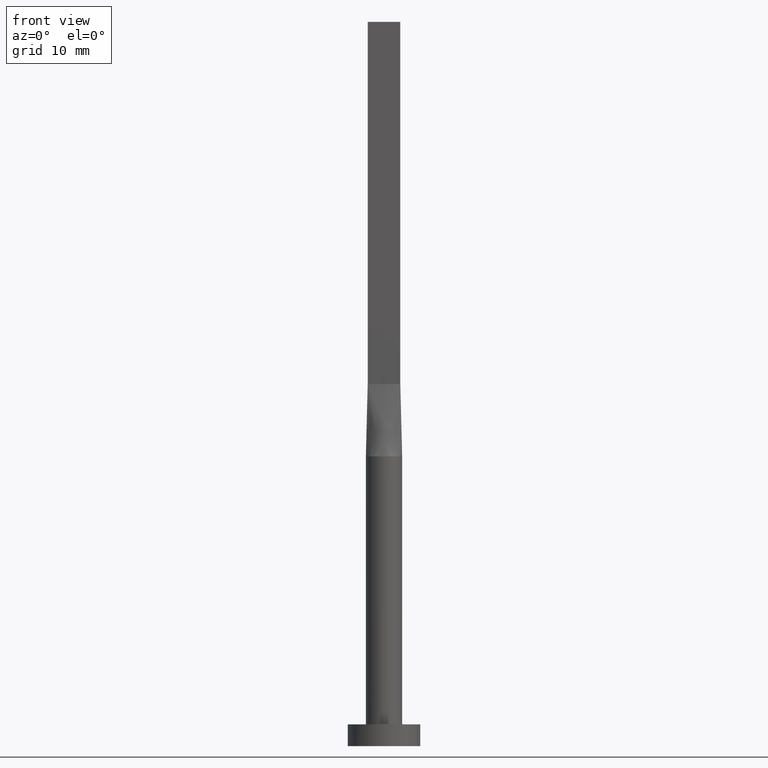
[diagram: clean part render]
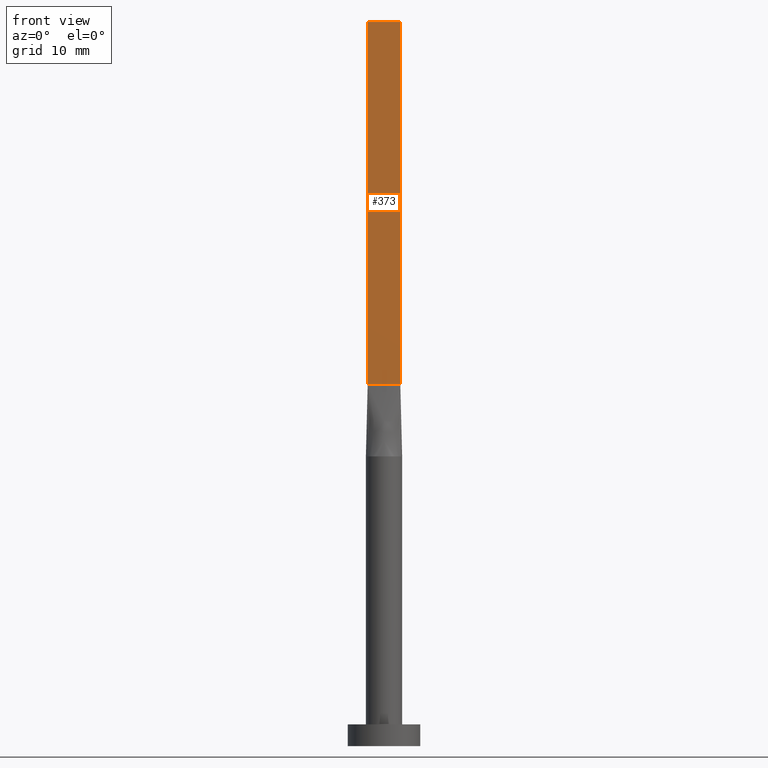
[diagram: same view with one face highlighted and labeled with its STEP entity id]
A machine part, front view. The second image highlights one B-rep face of the part: STEP entity #373.
In plain terms, the highlighted planar face has unit normal (0, 1, -0).
Its self-contained STEP definition (entity closure, byte-faithful):
#3 = LINE ( 'NONE', #243, #179 ) ;
#44 = VECTOR ( 'NONE', #85, 1000.000000000000000 ) ;
#53 = LINE ( 'NONE', #528, #567 ) ;
#62 = ORIENTED_EDGE ( 'NONE', *, *, #172, .T. ) ;
#67 = ORIENTED_EDGE ( 'NONE', *, *, #529, .F. ) ;
#70 = VERTEX_POINT ( 'NONE', #119 ) ;
#79 = CARTESIAN_POINT ( 'NONE',  ( 2.250000000000000000, -0.7499999999999997780, 50.00000000000000000 ) ) ;
#85 = DIRECTION ( 'NONE',  ( -0.000000000000000000, -0.000000000000000000, -1.000000000000000000 ) ) ;
#104 = FACE_OUTER_BOUND ( 'NONE', #467, .T. ) ;
#108 = DIRECTION ( 'NONE',  ( -1.000000000000000000, 4.818676322157798238E-17, 0.000000000000000000 ) ) ;
#116 = VERTEX_POINT ( 'NONE', #79 ) ;
#119 = CARTESIAN_POINT ( 'NONE',  ( -2.250000000000000000, -0.7499999999999995559, 100.0000000000000000 ) ) ;
#140 = VERTEX_POINT ( 'NONE', #226 ) ;
#172 = EDGE_CURVE ( 'NONE', #448, #116, #581, .T. ) ;
#179 = VECTOR ( 'NONE', #506, 1000.000000000000000 ) ;
#189 = CARTESIAN_POINT ( 'NONE',  ( 2.250000000000000000, -0.7499999999999997780, 100.0000000000000000 ) ) ;
#224 = CARTESIAN_POINT ( 'NONE',  ( -2.250000000000000000, -0.7499999999999995559, 50.00000000000000000 ) ) ;
#226 = CARTESIAN_POINT ( 'NONE',  ( 2.250000000000000000, -0.7499999999999997780, 100.0000000000000000 ) ) ;
#243 = CARTESIAN_POINT ( 'NONE',  ( -2.250000000000000000, -0.7499999999999995559, 100.0000000000000000 ) ) ;
#284 = DIRECTION ( 'NONE',  ( 4.818676322157798238E-17, 1.000000000000000000, -0.000000000000000000 ) ) ;
#305 = VECTOR ( 'NONE', #329, 1000.000000000000000 ) ;
#309 = EDGE_CURVE ( 'NONE', #70, #448, #3, .T. ) ;
#329 = DIRECTION ( 'NONE',  ( 1.000000000000000000, -4.818676322157797621E-17, 0.000000000000000000 ) ) ;
#333 = ORIENTED_EDGE ( 'NONE', *, *, #309, .T. ) ;
#338 = CARTESIAN_POINT ( 'NONE',  ( -2.250000000000000000, -0.7499999999999995559, 50.00000000000000000 ) ) ;
#373 = ADVANCED_FACE ( 'NONE', ( #104 ), #416, .F. ) ;
#381 = AXIS2_PLACEMENT_3D ( 'NONE', #454, #284, #108 ) ;
#416 = PLANE ( 'NONE',  #381 ) ;
#448 = VERTEX_POINT ( 'NONE', #338 ) ;
#454 = CARTESIAN_POINT ( 'NONE',  ( -2.250000000000000000, -0.7499999999999995559, 100.0000000000000000 ) ) ;
#467 = EDGE_LOOP ( 'NONE', ( #62, #569, #67, #333 ) ) ;
#484 = LINE ( 'NONE', #189, #44 ) ;
#501 = DIRECTION ( 'NONE',  ( 1.000000000000000000, -4.818676322157797621E-17, 0.000000000000000000 ) ) ;
#506 = DIRECTION ( 'NONE',  ( -0.000000000000000000, -0.000000000000000000, -1.000000000000000000 ) ) ;
#528 = CARTESIAN_POINT ( 'NONE',  ( -2.250000000000000000, -0.7499999999999995559, 100.0000000000000000 ) ) ;
#529 = EDGE_CURVE ( 'NONE', #70, #140, #53, .T. ) ;
#554 = EDGE_CURVE ( 'NONE', #140, #116, #484, .T. ) ;
#567 = VECTOR ( 'NONE', #501, 1000.000000000000000 ) ;
#569 = ORIENTED_EDGE ( 'NONE', *, *, #554, .F. ) ;
#581 = LINE ( 'NONE', #224, #305 ) ;